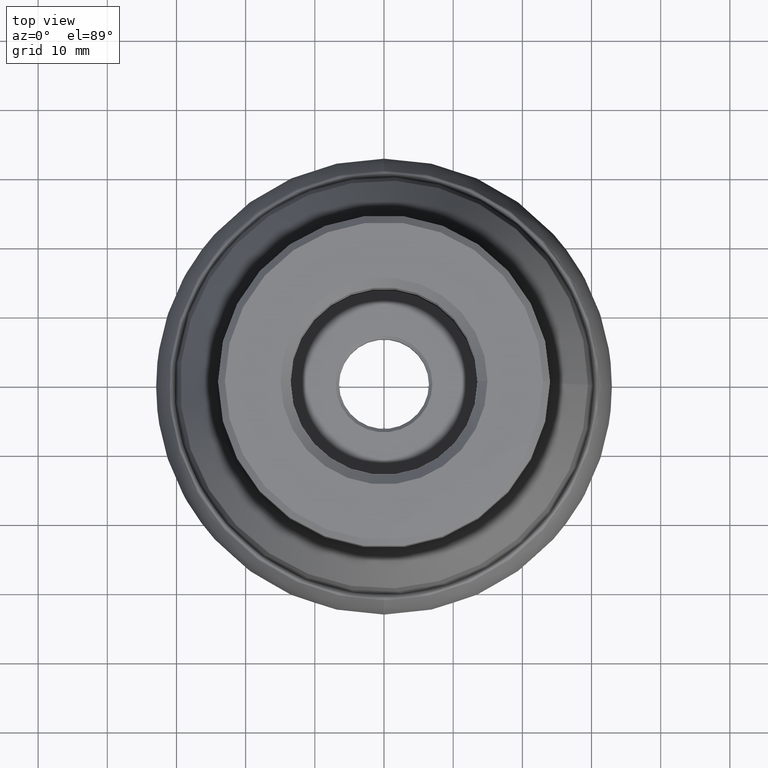
[diagram: clean part render]
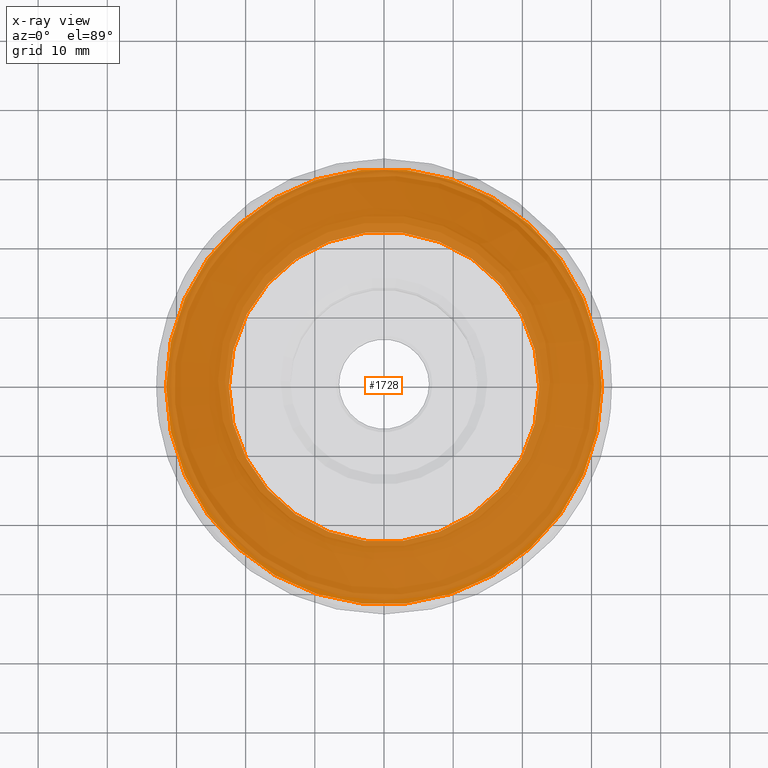
[diagram: x-ray — body ghosted, one internal face saturated and labeled with its STEP entity id]
A machine part, top view, then the same camera in x-ray: the body is ghosted and one INTERNAL B-rep face — a face not visible from any outside direction — is saturated and labeled: STEP entity #1728.
In plain terms, the highlighted conical surface has half-angle 81.796 deg.
Its self-contained STEP definition (entity closure, byte-faithful):
#5 = AXIS2_PLACEMENT_3D ( 'NONE', #2428, #1654, #2664 ) ;
#33 = ORIENTED_EDGE ( 'NONE', *, *, #2757, .T. ) ;
#251 = DIRECTION ( 'NONE',  ( 0.0000000000000000000, 0.0000000000000000000, -1.000000000000000000 ) ) ;
#660 = EDGE_CURVE ( 'NONE', #698, #698, #2558, .T. ) ;
#698 = VERTEX_POINT ( 'NONE', #809 ) ;
#809 = CARTESIAN_POINT ( 'NONE',  ( 22.43958489280143800, 0.0000000000000000000, -0.9673744216946133000 ) ) ;
#918 = AXIS2_PLACEMENT_3D ( 'NONE', #2817, #251, #1176 ) ;
#1176 = DIRECTION ( 'NONE',  ( -1.000000000000000000, 0.0000000000000000000, 0.0000000000000000000 ) ) ;
#1513 = EDGE_LOOP ( 'NONE', ( #33 ) ) ;
#1654 = DIRECTION ( 'NONE',  ( -0.0000000000000000000, -0.0000000000000000000, 1.000000000000000000 ) ) ;
#1728 = ADVANCED_FACE ( 'NONE', ( #2917, #2766 ), #2698, .T. ) ;
#1738 = CIRCLE ( 'NONE', #2001, 31.50776247508033000 ) ;
#1919 = VERTEX_POINT ( 'NONE', #2471 ) ;
#2001 = AXIS2_PLACEMENT_3D ( 'NONE', #2180, #2916, #2611 ) ;
#2003 = ORIENTED_EDGE ( 'NONE', *, *, #660, .F. ) ;
#2180 = CARTESIAN_POINT ( 'NONE',  ( 0.0000000000000000000, 0.0000000000000000000, -2.274803065524232600 ) ) ;
#2428 = CARTESIAN_POINT ( 'NONE',  ( 0.0000000000000000000, 0.0000000000000000000, -0.9673744216946133000 ) ) ;
#2471 = CARTESIAN_POINT ( 'NONE',  ( 31.50776247508033000, 0.0000000000000000000, -2.274803065524232600 ) ) ;
#2558 = CIRCLE ( 'NONE', #5, 22.43958489280143800 ) ;
#2611 = DIRECTION ( 'NONE',  ( 1.000000000000000000, 0.0000000000000000000, 0.0000000000000000000 ) ) ;
#2664 = DIRECTION ( 'NONE',  ( 1.000000000000000000, 0.0000000000000000000, 0.0000000000000000000 ) ) ;
#2698 = CONICAL_SURFACE ( 'NONE', #918, 31.50776247508033000, 1.427605403200933800 ) ;
#2757 = EDGE_CURVE ( 'NONE', #1919, #1919, #1738, .T. ) ;
#2766 = FACE_OUTER_BOUND ( 'NONE', #1513, .T. ) ;
#2817 = CARTESIAN_POINT ( 'NONE',  ( 0.0000000000000000000, 0.0000000000000000000, -2.274803065524232600 ) ) ;
#2837 = EDGE_LOOP ( 'NONE', ( #2003 ) ) ;
#2916 = DIRECTION ( 'NONE',  ( -0.0000000000000000000, -0.0000000000000000000, 1.000000000000000000 ) ) ;
#2917 = FACE_BOUND ( 'NONE', #2837, .T. ) ;